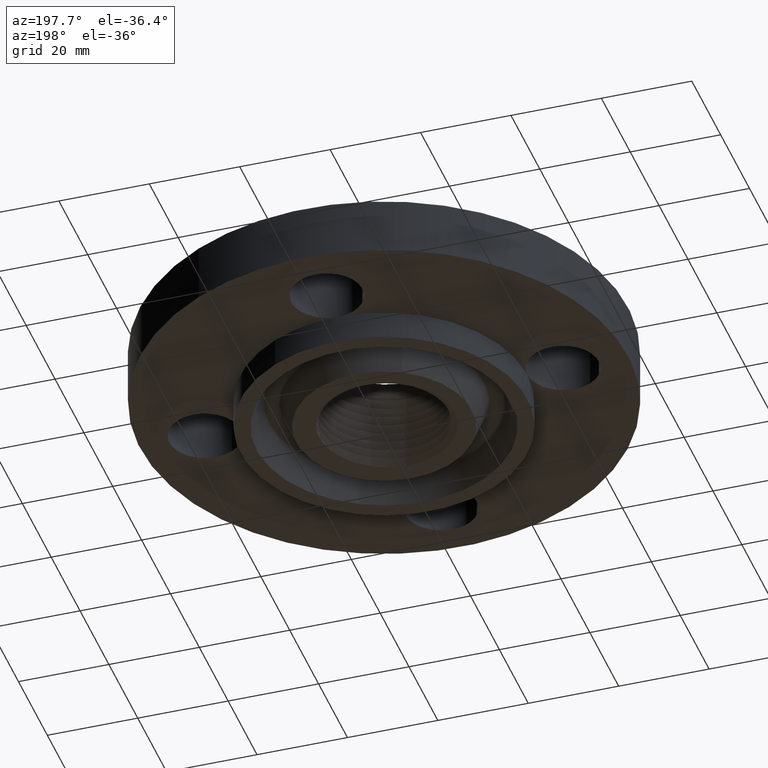
[diagram: clean part render]
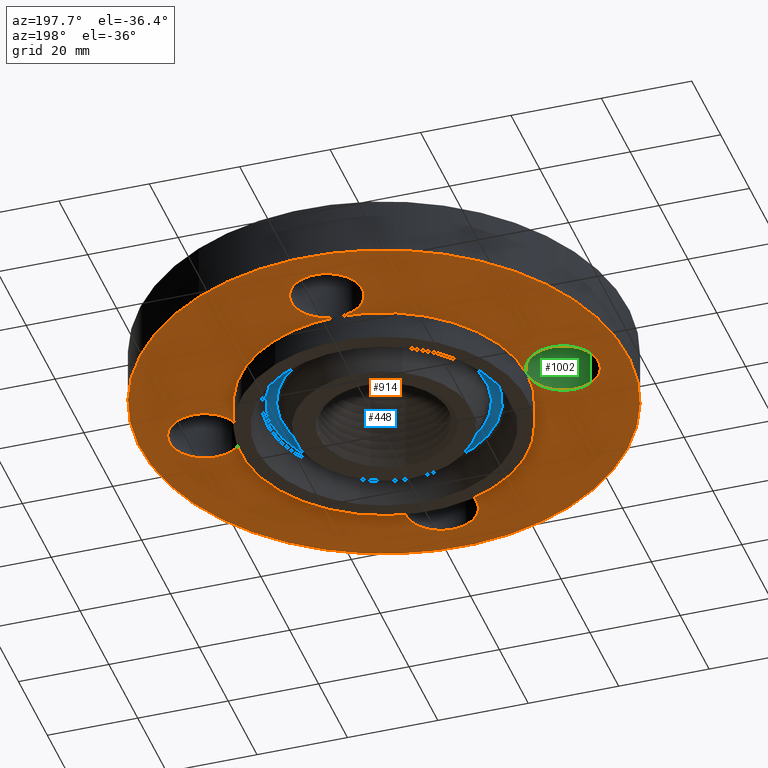
[diagram: same view with three faces highlighted in distinct colors, each labeled with its STEP entity id]
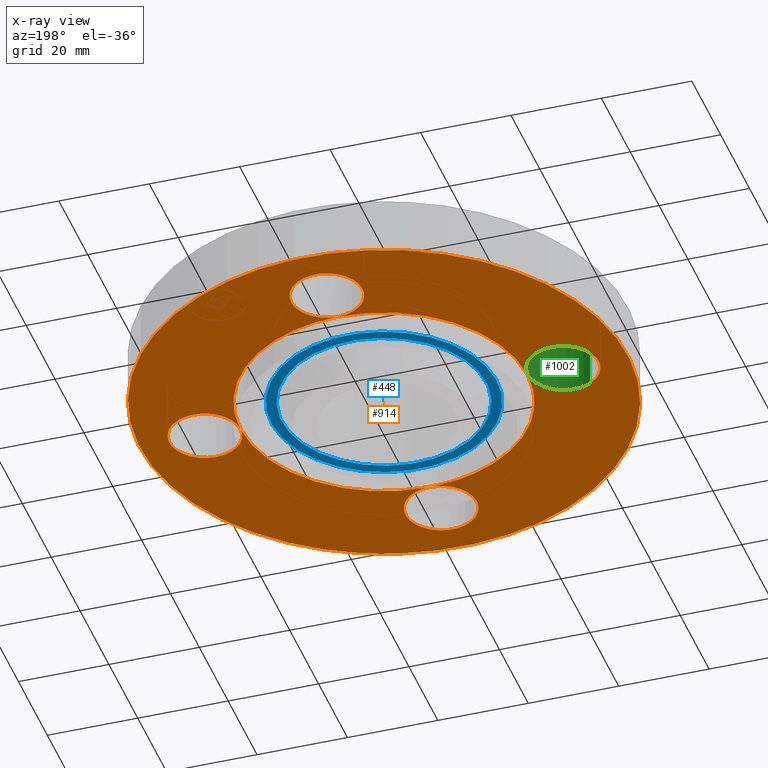
[diagram: x-ray of the same camera — body ghosted, the three highlighted faces saturated]
A machine part, auxiliary view with three faces highlighted in distinct colors.
The next image is the same camera in x-ray (body ghosted, the three faces saturated) — at least one of them is partly hidden behind the body in this view.
Their STEP definitions:

[orange] entity #914 — the highlighted planar face has unit normal (0, 0, -1).
#424=AXIS2_PLACEMENT_3D('Plane Axis2P3D',#421,#422,#423) ;
#511=AXIS2_PLACEMENT_3D('Circle Axis2P3D',#509,#510,$) ;
#537=AXIS2_PLACEMENT_3D('Circle Axis2P3D',#535,#536,$) ;
#544=AXIS2_PLACEMENT_3D('Circle Axis2P3D',#542,#543,$) ;
#567=AXIS2_PLACEMENT_3D('Circle Axis2P3D',#565,#566,$) ;
#602=AXIS2_PLACEMENT_3D('Circle Axis2P3D',#600,#601,$) ;
#769=AXIS2_PLACEMENT_3D('Circle Axis2P3D',#767,#768,$) ;
#776=AXIS2_PLACEMENT_3D('Circle Axis2P3D',#774,#775,$) ;
#781=AXIS2_PLACEMENT_3D('Circle Axis2P3D',#779,#780,$) ;
#807=AXIS2_PLACEMENT_3D('Circle Axis2P3D',#805,#806,$) ;
#814=AXIS2_PLACEMENT_3D('Circle Axis2P3D',#812,#813,$) ;
#821=AXIS2_PLACEMENT_3D('Circle Axis2P3D',#819,#820,$) ;
#839=AXIS2_PLACEMENT_3D('Circle Axis2P3D',#837,#838,$) ;
#846=AXIS2_PLACEMENT_3D('Circle Axis2P3D',#844,#845,$) ;
#853=AXIS2_PLACEMENT_3D('Circle Axis2P3D',#851,#852,$) ;
#858=AXIS2_PLACEMENT_3D('Circle Axis2P3D',#856,#857,$) ;
#865=AXIS2_PLACEMENT_3D('Circle Axis2P3D',#863,#864,$) ;
#872=AXIS2_PLACEMENT_3D('Circle Axis2P3D',#870,#871,$) ;
#877=AXIS2_PLACEMENT_3D('Circle Axis2P3D',#875,#876,$) ;
#884=AXIS2_PLACEMENT_3D('Circle Axis2P3D',#882,#883,$) ;
#891=AXIS2_PLACEMENT_3D('Circle Axis2P3D',#889,#890,$) ;
#421=CARTESIAN_POINT('Axis2P3D Location',(0.,1.25,0.)) ;
#504=CARTESIAN_POINT('Vertex',(-0.272050594187,1.70862191697,0.)) ;
#509=CARTESIAN_POINT('Axis2P3D Location',(0.,1.56000000001,0.)) ;
#513=CARTESIAN_POINT('Vertex',(0.272050594187,1.41137808304,0.)) ;
#535=CARTESIAN_POINT('Axis2P3D Location',(0.,1.56000000001,0.)) ;
#539=CARTESIAN_POINT('Vertex',(-5.35782974629E-016,1.25,6.99353086378E-017)) ;
#542=CARTESIAN_POINT('Axis2P3D Location',(0.,1.56000000001,0.)) ;
#565=CARTESIAN_POINT('Axis2P3D Location',(0.,0.,6.99353086378E-017)) ;
#569=CARTESIAN_POINT('Vertex',(-1.01877926954,-1.86486294402,6.99353086378E-017)) ;
#571=CARTESIAN_POINT('Vertex',(1.01877926954,1.86486294402,6.99353086378E-017)) ;
#600=CARTESIAN_POINT('Axis2P3D Location',(0.,0.,6.99353086378E-017)) ;
#764=CARTESIAN_POINT('Vertex',(-0.599281923258,-1.09697820237,6.99353086378E-017)) ;
#767=CARTESIAN_POINT('Axis2P3D Location',(0.,0.,6.99353086378E-017)) ;
#771=CARTESIAN_POINT('Vertex',(-1.25000000001,0.,0.)) ;
#774=CARTESIAN_POINT('Axis2P3D Location',(0.,0.,6.99353086378E-017)) ;
#779=CARTESIAN_POINT('Axis2P3D Location',(0.,0.,6.99353086378E-017)) ;
#783=CARTESIAN_POINT('Vertex',(0.599281923258,1.09697820237,6.99353086378E-017)) ;
#805=CARTESIAN_POINT('Axis2P3D Location',(0.,0.,6.99353086378E-017)) ;
#809=CARTESIAN_POINT('Vertex',(1.25000000001,2.79741234551E-016,0.)) ;
#812=CARTESIAN_POINT('Axis2P3D Location',(0.,0.,6.99353086378E-017)) ;
#816=CARTESIAN_POINT('Vertex',(-3.41023299848E-016,-1.25000000001,0.)) ;
#819=CARTESIAN_POINT('Axis2P3D Location',(0.,0.,6.99353086378E-017)) ;
#837=CARTESIAN_POINT('Axis2P3D Location',(-8.74191357973E-018,-1.56000000001,0.)) ;
#841=CARTESIAN_POINT('Vertex',(-0.272050594187,-1.41137808304,0.)) ;
#844=CARTESIAN_POINT('Axis2P3D Location',(2.01064012334E-016,-1.56000000001,0.)) ;
#848=CARTESIAN_POINT('Vertex',(0.272050594187,-1.70862191697,0.)) ;
#851=CARTESIAN_POINT('Axis2P3D Location',(-8.74191357973E-018,-1.56000000001,0.)) ;
#856=CARTESIAN_POINT('Axis2P3D Location',(1.56000000001,1.39870617276E-016,0.)) ;
#860=CARTESIAN_POINT('Vertex',(1.41137808304,-0.272050594187,0.)) ;
#863=CARTESIAN_POINT('Axis2P3D Location',(1.56000000001,1.39870617276E-016,0.)) ;
#867=CARTESIAN_POINT('Vertex',(1.70862191697,0.272050594187,0.)) ;
#870=CARTESIAN_POINT('Axis2P3D Location',(1.56000000001,1.39870617276E-016,0.)) ;
#875=CARTESIAN_POINT('Axis2P3D Location',(-1.56000000001,-1.39870617276E-016,0.)) ;
#879=CARTESIAN_POINT('Vertex',(-1.41137808304,0.272050594187,0.)) ;
#882=CARTESIAN_POINT('Axis2P3D Location',(-1.56000000001,-2.79741234551E-016,0.)) ;
#886=CARTESIAN_POINT('Vertex',(-1.70862191697,-0.272050594187,0.)) ;
#889=CARTESIAN_POINT('Axis2P3D Location',(-1.56000000001,-1.39870617276E-016,0.)) ;
#422=DIRECTION('Axis2P3D Direction',(0.,0.,-0.0393700787402)) ;
#423=DIRECTION('Axis2P3D XDirection',(0.0393700787402,0.,0.)) ;
#510=DIRECTION('Axis2P3D Direction',(0.,-0.,-0.0393700787402)) ;
#536=DIRECTION('Axis2P3D Direction',(0.,-0.,-0.0393700787402)) ;
#543=DIRECTION('Axis2P3D Direction',(0.,-0.,-0.0393700787402)) ;
#566=DIRECTION('Axis2P3D Direction',(0.,0.,-0.0393700787402)) ;
#601=DIRECTION('Axis2P3D Direction',(0.,0.,-0.0393700787402)) ;
#768=DIRECTION('Axis2P3D Direction',(0.,0.,-0.0393700787402)) ;
#775=DIRECTION('Axis2P3D Direction',(0.,0.,-0.0393700787402)) ;
#780=DIRECTION('Axis2P3D Direction',(0.,0.,-0.0393700787402)) ;
#806=DIRECTION('Axis2P3D Direction',(0.,0.,-0.0393700787402)) ;
#813=DIRECTION('Axis2P3D Direction',(0.,0.,-0.0393700787402)) ;
#820=DIRECTION('Axis2P3D Direction',(0.,0.,-0.0393700787402)) ;
#838=DIRECTION('Axis2P3D Direction',(0.,0.,-0.0393700787402)) ;
#845=DIRECTION('Axis2P3D Direction',(0.,0.,-0.0393700787402)) ;
#852=DIRECTION('Axis2P3D Direction',(0.,0.,-0.0393700787402)) ;
#857=DIRECTION('Axis2P3D Direction',(0.,0.,-0.0393700787402)) ;
#864=DIRECTION('Axis2P3D Direction',(0.,0.,-0.0393700787402)) ;
#871=DIRECTION('Axis2P3D Direction',(0.,0.,-0.0393700787402)) ;
#876=DIRECTION('Axis2P3D Direction',(0.,0.,-0.0393700787402)) ;
#883=DIRECTION('Axis2P3D Direction',(0.,0.,-0.0393700787402)) ;
#890=DIRECTION('Axis2P3D Direction',(0.,0.,-0.0393700787402)) ;
#834=ORIENTED_EDGE('',*,*,#573,.T.) ;
#835=ORIENTED_EDGE('',*,*,#604,.T.) ;
#895=ORIENTED_EDGE('',*,*,#843,.F.) ;
#896=ORIENTED_EDGE('',*,*,#850,.F.) ;
#897=ORIENTED_EDGE('',*,*,#855,.F.) ;
#898=ORIENTED_EDGE('',*,*,#818,.F.) ;
#899=ORIENTED_EDGE('',*,*,#862,.F.) ;
#900=ORIENTED_EDGE('',*,*,#869,.F.) ;
#901=ORIENTED_EDGE('',*,*,#874,.F.) ;
#902=ORIENTED_EDGE('',*,*,#811,.F.) ;
#903=ORIENTED_EDGE('',*,*,#785,.F.) ;
#904=ORIENTED_EDGE('',*,*,#541,.F.) ;
#905=ORIENTED_EDGE('',*,*,#515,.F.) ;
#906=ORIENTED_EDGE('',*,*,#546,.F.) ;
#907=ORIENTED_EDGE('',*,*,#778,.F.) ;
#908=ORIENTED_EDGE('',*,*,#881,.F.) ;
#909=ORIENTED_EDGE('',*,*,#888,.F.) ;
#910=ORIENTED_EDGE('',*,*,#893,.F.) ;
#911=ORIENTED_EDGE('',*,*,#773,.F.) ;
#912=ORIENTED_EDGE('',*,*,#823,.F.) ;
#913=FACE_BOUND('',#894,.T.) ;
#914=ADVANCED_FACE('PartBody',(#836,#913),#425,.T.) ;
#512=CIRCLE('generated circle',#511,0.310000000001) ;
#538=CIRCLE('generated circle',#537,0.310000000001) ;
#545=CIRCLE('generated circle',#544,0.310000000001) ;
#568=CIRCLE('generated circle',#567,2.12500000001) ;
#603=CIRCLE('generated circle',#602,2.12500000001) ;
#770=CIRCLE('generated circle',#769,1.25) ;
#777=CIRCLE('generated circle',#776,1.25) ;
#782=CIRCLE('generated circle',#781,1.25) ;
#808=CIRCLE('generated circle',#807,1.25) ;
#815=CIRCLE('generated circle',#814,1.25) ;
#822=CIRCLE('generated circle',#821,1.25) ;
#840=CIRCLE('generated circle',#839,0.310000000001) ;
#847=CIRCLE('generated circle',#846,0.310000000001) ;
#854=CIRCLE('generated circle',#853,0.310000000001) ;
#859=CIRCLE('generated circle',#858,0.310000000001) ;
#866=CIRCLE('generated circle',#865,0.310000000001) ;
#873=CIRCLE('generated circle',#872,0.310000000001) ;
#878=CIRCLE('generated circle',#877,0.310000000001) ;
#885=CIRCLE('generated circle',#884,0.310000000001) ;
#892=CIRCLE('generated circle',#891,0.310000000001) ;
#515=EDGE_CURVE('',#505,#514,#512,.T.) ;
#541=EDGE_CURVE('',#514,#540,#538,.T.) ;
#546=EDGE_CURVE('',#540,#505,#545,.T.) ;
#573=EDGE_CURVE('',#570,#572,#568,.T.) ;
#604=EDGE_CURVE('',#572,#570,#603,.T.) ;
#773=EDGE_CURVE('',#765,#772,#770,.T.) ;
#778=EDGE_CURVE('',#772,#540,#777,.T.) ;
#785=EDGE_CURVE('',#540,#784,#782,.T.) ;
#811=EDGE_CURVE('',#784,#810,#808,.T.) ;
#818=EDGE_CURVE('',#810,#817,#815,.T.) ;
#823=EDGE_CURVE('',#817,#765,#822,.T.) ;
#843=EDGE_CURVE('',#842,#817,#840,.T.) ;
#850=EDGE_CURVE('',#849,#842,#847,.T.) ;
#855=EDGE_CURVE('',#817,#849,#854,.T.) ;
#862=EDGE_CURVE('',#861,#810,#859,.T.) ;
#869=EDGE_CURVE('',#868,#861,#866,.T.) ;
#874=EDGE_CURVE('',#810,#868,#873,.T.) ;
#881=EDGE_CURVE('',#880,#772,#878,.T.) ;
#888=EDGE_CURVE('',#887,#880,#885,.T.) ;
#893=EDGE_CURVE('',#772,#887,#892,.T.) ;
#833=EDGE_LOOP('',(#834,#835)) ;
#894=EDGE_LOOP('',(#895,#896,#897,#898,#899,#900,#901,#902,#903,#904,#905,#906,#907,#908,#909,#910,#911,#912)) ;
#836=FACE_OUTER_BOUND('',#833,.T.) ;
#425=PLANE('',#424) ;
#505=VERTEX_POINT('',#504) ;
#514=VERTEX_POINT('',#513) ;
#540=VERTEX_POINT('',#539) ;
#570=VERTEX_POINT('',#569) ;
#572=VERTEX_POINT('',#571) ;
#765=VERTEX_POINT('',#764) ;
#772=VERTEX_POINT('',#771) ;
#784=VERTEX_POINT('',#783) ;
#810=VERTEX_POINT('',#809) ;
#817=VERTEX_POINT('',#816) ;
#842=VERTEX_POINT('',#841) ;
#849=VERTEX_POINT('',#848) ;
#861=VERTEX_POINT('',#860) ;
#868=VERTEX_POINT('',#867) ;
#880=VERTEX_POINT('',#879) ;
#887=VERTEX_POINT('',#886) ;

[blue] entity #448 — the highlighted planar face has unit normal (0, 0, -1).
#345=AXIS2_PLACEMENT_3D('Circle Axis2P3D',#343,#344,$) ;
#371=AXIS2_PLACEMENT_3D('Circle Axis2P3D',#369,#370,$) ;
#424=AXIS2_PLACEMENT_3D('Plane Axis2P3D',#421,#422,#423) ;
#428=AXIS2_PLACEMENT_3D('Circle Axis2P3D',#426,#427,$) ;
#437=AXIS2_PLACEMENT_3D('Circle Axis2P3D',#435,#436,$) ;
#343=CARTESIAN_POINT('Axis2P3D Location',(0.,0.,7.47433611067E-016)) ;
#347=CARTESIAN_POINT('Vertex',(-0.427852596144,0.783178923945,7.47433611067E-016)) ;
#349=CARTESIAN_POINT('Vertex',(0.427852596144,-0.783178923945,7.47433611067E-016)) ;
#369=CARTESIAN_POINT('Axis2P3D Location',(0.,0.,7.47433611067E-016)) ;
#421=CARTESIAN_POINT('Axis2P3D Location',(0.,1.25,0.)) ;
#426=CARTESIAN_POINT('Axis2P3D Location',(0.,0.,0.)) ;
#430=CARTESIAN_POINT('Vertex',(-0.471070288742,0.862288379607,-7.34320740697E-016)) ;
#432=CARTESIAN_POINT('Vertex',(0.471070288742,-0.862288379607,-7.34320740697E-016)) ;
#435=CARTESIAN_POINT('Axis2P3D Location',(0.,0.,0.)) ;
#344=DIRECTION('Axis2P3D Direction',(0.,0.,0.0393700787402)) ;
#370=DIRECTION('Axis2P3D Direction',(0.,0.,0.0393700787402)) ;
#422=DIRECTION('Axis2P3D Direction',(0.,0.,-0.0393700787402)) ;
#423=DIRECTION('Axis2P3D XDirection',(0.0393700787402,0.,0.)) ;
#427=DIRECTION('Axis2P3D Direction',(0.,0.,-0.0393700787402)) ;
#436=DIRECTION('Axis2P3D Direction',(0.,0.,-0.0393700787402)) ;
#441=ORIENTED_EDGE('',*,*,#434,.F.) ;
#442=ORIENTED_EDGE('',*,*,#439,.F.) ;
#445=ORIENTED_EDGE('',*,*,#373,.T.) ;
#446=ORIENTED_EDGE('',*,*,#351,.T.) ;
#447=FACE_BOUND('',#444,.T.) ;
#448=ADVANCED_FACE('PartBody',(#443,#447),#425,.T.) ;
#346=CIRCLE('generated circle',#345,0.892427627843) ;
#372=CIRCLE('generated circle',#371,0.892427627843) ;
#429=CIRCLE('generated circle',#428,0.982572372164) ;
#438=CIRCLE('generated circle',#437,0.982572372164) ;
#351=EDGE_CURVE('',#348,#350,#346,.T.) ;
#373=EDGE_CURVE('',#350,#348,#372,.T.) ;
#434=EDGE_CURVE('',#431,#433,#429,.F.) ;
#439=EDGE_CURVE('',#433,#431,#438,.F.) ;
#440=EDGE_LOOP('',(#441,#442)) ;
#444=EDGE_LOOP('',(#445,#446)) ;
#443=FACE_OUTER_BOUND('',#440,.T.) ;
#425=PLANE('',#424) ;
#348=VERTEX_POINT('',#347) ;
#350=VERTEX_POINT('',#349) ;
#431=VERTEX_POINT('',#430) ;
#433=VERTEX_POINT('',#432) ;

[green] entity #1002 — the highlighted cylindrical surface (partial cylindrical patch) has radius 7.874 mm, axis along (0, 0, -1).
#877=AXIS2_PLACEMENT_3D('Circle Axis2P3D',#875,#876,$) ;
#891=AXIS2_PLACEMENT_3D('Circle Axis2P3D',#889,#890,$) ;
#962=AXIS2_PLACEMENT_3D('Cylinder Axis2P3D',#959,#960,#961) ;
#992=AXIS2_PLACEMENT_3D('Circle Axis2P3D',#990,#991,$) ;
#771=CARTESIAN_POINT('Vertex',(-1.25000000001,0.,0.)) ;
#875=CARTESIAN_POINT('Axis2P3D Location',(-1.56000000001,-1.39870617276E-016,0.)) ;
#879=CARTESIAN_POINT('Vertex',(-1.41137808304,0.272050594187,0.)) ;
#886=CARTESIAN_POINT('Vertex',(-1.70862191697,-0.272050594187,0.)) ;
#889=CARTESIAN_POINT('Axis2P3D Location',(-1.56000000001,-1.39870617276E-016,0.)) ;
#959=CARTESIAN_POINT('Axis2P3D Location',(-1.56000000001,-2.86557886796E-016,0.496062992128)) ;
#964=CARTESIAN_POINT('Line Origine',(-1.70862191697,-0.272050594187,0.250000000001)) ;
#968=CARTESIAN_POINT('Vertex',(-1.70862191697,-0.272050594187,0.500000000002)) ;
#971=CARTESIAN_POINT('Line Origine',(-1.41137808304,0.272050594187,0.250000000001)) ;
#975=CARTESIAN_POINT('Vertex',(-1.41137808304,0.272050594187,0.500000000002)) ;
#990=CARTESIAN_POINT('Axis2P3D Location',(-1.56000000001,-2.86557886796E-016,0.500000000002)) ;
#876=DIRECTION('Axis2P3D Direction',(0.,0.,-0.0393700787402)) ;
#890=DIRECTION('Axis2P3D Direction',(0.,0.,-0.0393700787402)) ;
#960=DIRECTION('Axis2P3D Direction',(0.,0.,-0.0393700787402)) ;
#961=DIRECTION('Axis2P3D XDirection',(0.0188750212049,0.0345504945626,0.)) ;
#965=DIRECTION('Vector Direction',(0.,0.,-0.0393700787402)) ;
#972=DIRECTION('Vector Direction',(0.,0.,-0.0393700787402)) ;
#991=DIRECTION('Axis2P3D Direction',(0.,0.,-0.0393700787402)) ;
#966=VECTOR('Line Direction',#965,0.0393700787402) ;
#973=VECTOR('Line Direction',#972,0.0393700787402) ;
#996=ORIENTED_EDGE('',*,*,#977,.F.) ;
#997=ORIENTED_EDGE('',*,*,#881,.T.) ;
#998=ORIENTED_EDGE('',*,*,#893,.T.) ;
#999=ORIENTED_EDGE('',*,*,#970,.T.) ;
#1000=ORIENTED_EDGE('',*,*,#994,.F.) ;
#1002=ADVANCED_FACE('PartBody',(#1001),#963,.F.) ;
#878=CIRCLE('generated circle',#877,0.310000000001) ;
#892=CIRCLE('generated circle',#891,0.310000000001) ;
#993=CIRCLE('generated circle',#992,0.310000000001) ;
#963=CYLINDRICAL_SURFACE('generated cylinder',#962,0.310000000001) ;
#881=EDGE_CURVE('',#880,#772,#878,.T.) ;
#893=EDGE_CURVE('',#772,#887,#892,.T.) ;
#970=EDGE_CURVE('',#887,#969,#967,.F.) ;
#977=EDGE_CURVE('',#880,#976,#974,.F.) ;
#994=EDGE_CURVE('',#976,#969,#993,.T.) ;
#995=EDGE_LOOP('',(#996,#997,#998,#999,#1000)) ;
#1001=FACE_OUTER_BOUND('',#995,.T.) ;
#967=LINE('Line',#964,#966) ;
#974=LINE('Line',#971,#973) ;
#772=VERTEX_POINT('',#771) ;
#880=VERTEX_POINT('',#879) ;
#887=VERTEX_POINT('',#886) ;
#969=VERTEX_POINT('',#968) ;
#976=VERTEX_POINT('',#975) ;